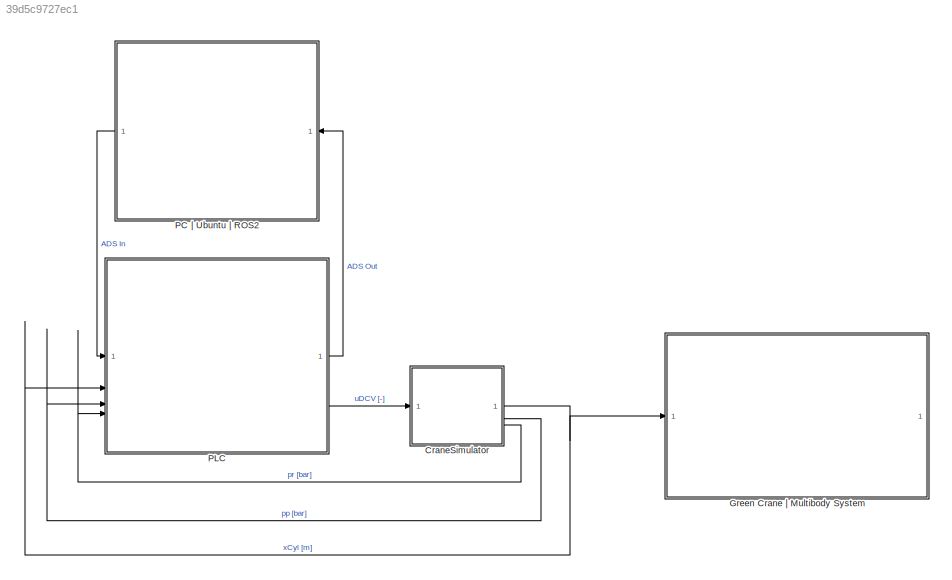
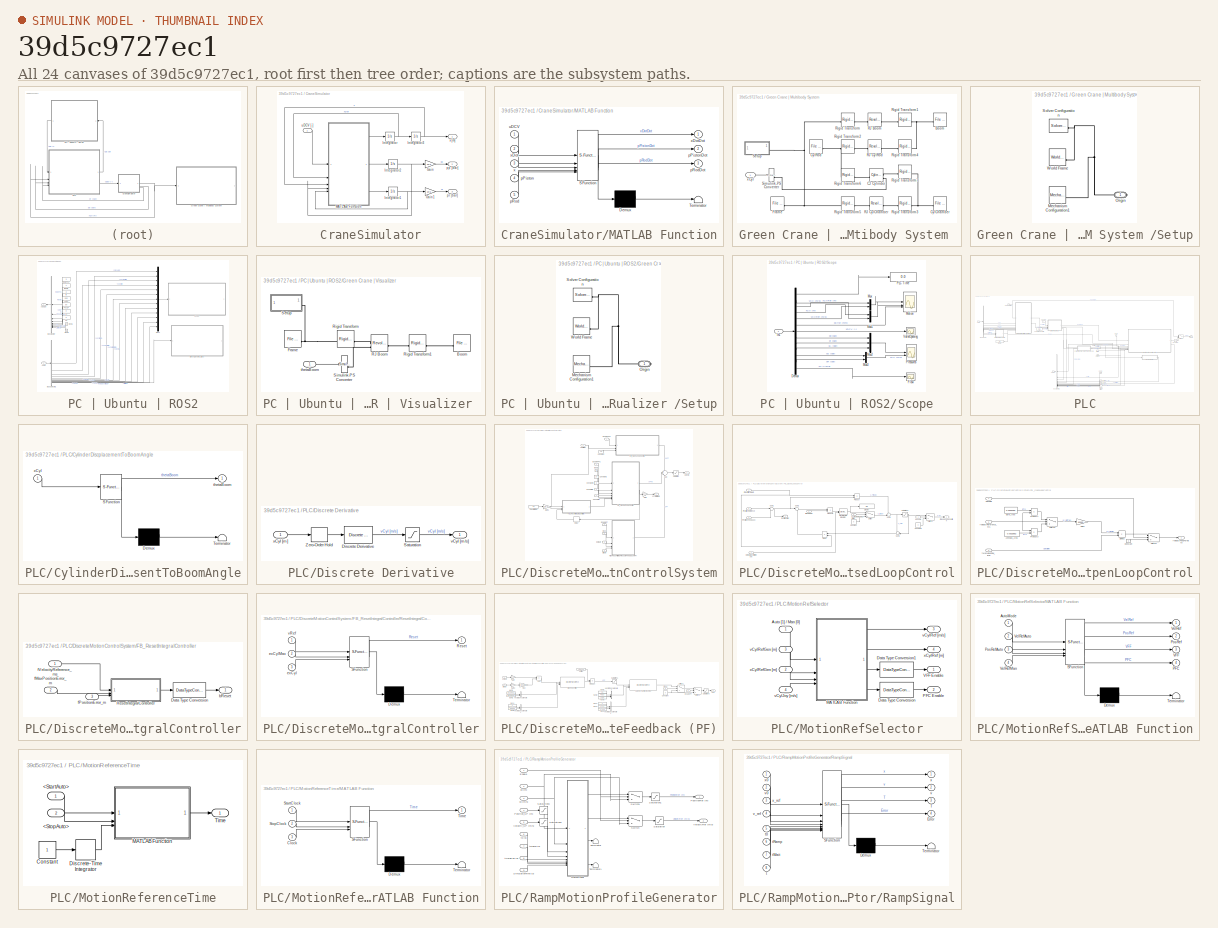
[diagram: thumbnail index - all 24 canvases of the model, root first then tree order]
MODEL slx_39d5c9727ec1
KIND model
CONFIG AbsTol = auto
CONFIG EnableMultiTasking = off
CONFIG FixedStep = 0.0001
CONFIG MaxStep = auto
CONFIG MinStep = auto
CONFIG RelTol = 1e-3
CONFIG SampleTimeConstraint = Unconstrained
CONFIG SolverName = ode23
CONFIG StartTime = 0.0
CONFIG StopTime = 25
BLOCK [SubSystem] CraneSimulator
BLOCK [Gain] CraneSimulator/Gain
  Gain = 1e-5
BLOCK [Gain] CraneSimulator/Gain1
  Gain = 1e-5
BLOCK [Integrator] CraneSimulator/Integrator
  LowerSaturationLimit = -0.12
  UpperSaturationLimit = 0.12
BLOCK [Integrator] CraneSimulator/Integrator1
  InitialCondition = 5.144e5
  LimitOutput = on
  LowerSaturationLimit = 1.1e5
  UpperSaturationLimit = 180e5
BLOCK [Integrator] CraneSimulator/Integrator2
  InitialCondition = 68.74e5
  LimitOutput = on
  LowerSaturationLimit = 1.1e5
  UpperSaturationLimit = 180e5
BLOCK [Integrator] CraneSimulator/Integrator3
  LimitOutput = on
  LowerSaturationLimit = 0
  UpperSaturationLimit = 0.5
BLOCK [SubSystem] CraneSimulator/MATLAB Function
  ErrorFcn = Stateflow.Translate.translate
  PermitHierarchicalResolution = ExplicitOnly
  SFBlockType = MATLAB Function
  TreatAsAtomicUnit = on
BLOCK [Demux] CraneSimulator/MATLAB Function/ Demux 
  Outputs = 1
BLOCK [S-Function] CraneSimulator/MATLAB Function/ SFunction 
  EnableBusSupport = off
  FunctionName = sf_sfun
  PortCounts = [5 4]
  SFcnIsStateOwnerBlock = off
  SFunctionDeploymentMode = off
  Tag = Stateflow S-Function 9
BLOCK [Terminator] CraneSimulator/MATLAB Function/ Terminator 
BLOCK [Inport] CraneSimulator/MATLAB Function/pPiston
  Port = 4
BLOCK [Outport] CraneSimulator/MATLAB Function/pPistonDot
  Port = 2
BLOCK [Inport] CraneSimulator/MATLAB Function/pRod
  Port = 5
BLOCK [Outport] CraneSimulator/MATLAB Function/pRodDot
  Port = 3
BLOCK [Inport] CraneSimulator/MATLAB Function/uDCV
BLOCK [Inport] CraneSimulator/MATLAB Function/x
  Port = 3
BLOCK [Inport] CraneSimulator/MATLAB Function/xDot
  Port = 2
BLOCK [Outport] CraneSimulator/MATLAB Function/xDotDot
BLOCK [Outport] CraneSimulator/pp [bar]
  Port = 2
BLOCK [Outport] CraneSimulator/pr [bar]
  Port = 3
BLOCK [Inport] CraneSimulator/uDCV [-]
BLOCK [Outport] CraneSimulator/x [m]
BLOCK [SubSystem] Green Crane | Multibody System 
BLOCK [Reference] Green Crane | Multibody System /Boom  REF=sm_lib/Body Elements/File Solid
  SourceBlock = sm_lib/Body Elements/File Solid
  SourceType = File Solid
BLOCK [Reference] Green Crane | Multibody System /CJ Cylinder  REF=sm_lib/Joints/Cylindrical
Joint
  NameLocation = top
  SourceBlock = sm_lib/Joints/Cylindrical\nJoint
  SourceType = Cylindrical\nJoint
BLOCK [Reference] Green Crane | Multibody System /CylChamber  REF=sm_lib/Body Elements/File Solid
  SourceBlock = sm_lib/Body Elements/File Solid
  SourceType = File Solid
BLOCK [Reference] Green Crane | Multibody System /CylRod  REF=sm_lib/Body Elements/File Solid
  NameLocation = top
  SourceBlock = sm_lib/Body Elements/File Solid
  SourceType = File Solid
BLOCK [Reference] Green Crane | Multibody System /Frame  REF=sm_lib/Body Elements/File Solid
  NameLocation = top
  SourceBlock = sm_lib/Body Elements/File Solid
  SourceType = File Solid
BLOCK [Reference] Green Crane | Multibody System /RJ Boom  REF=sm_lib/Joints/Revolute Joint
  SourceBlock = sm_lib/Joints/Revolute Joint
  SourceType = Revolute Joint
BLOCK [Reference] Green Crane | Multibody System /RJ CylChamber  REF=sm_lib/Joints/Revolute Joint
  SourceBlock = sm_lib/Joints/Revolute Joint
  SourceType = Revolute Joint
BLOCK [Reference] Green Crane | Multibody System /RJ CylRod  REF=sm_lib/Joints/Revolute Joint
  NameLocation = top
  SourceBlock = sm_lib/Joints/Revolute Joint
  SourceType = Revolute Joint
BLOCK [Reference] Green Crane | Multibody System /Rigid Transform  REF=sm_lib/Frames and
Transforms/Rigid
Transform
  SourceBlock = sm_lib/Frames and\nTransforms/Rigid\nTransform
  SourceType = Rigid\nTransform
BLOCK [Reference] Green Crane | Multibody System /Rigid Transform1  REF=sm_lib/Frames and
Transforms/Rigid
Transform
  NameLocation = top
  SourceBlock = sm_lib/Frames and\nTransforms/Rigid\nTransform
  SourceType = Rigid\nTransform
BLOCK [Reference] Green Crane | Multibody System /Rigid Transform2  REF=sm_lib/Frames and
Transforms/Rigid
Transform
  SourceBlock = sm_lib/Frames and\nTransforms/Rigid\nTransform
  SourceType = Rigid\nTransform
BLOCK [Reference] Green Crane | Multibody System /Rigid Transform3  REF=sm_lib/Frames and
Transforms/Rigid
Transform
  NameLocation = top
  SourceBlock = sm_lib/Frames and\nTransforms/Rigid\nTransform
  SourceType = Rigid\nTransform
BLOCK [Reference] Green Crane | Multibody System /Rigid Transform4  REF=sm_lib/Frames and
Transforms/Rigid
Transform
  NameLocation = top
  SourceBlock = sm_lib/Frames and\nTransforms/Rigid\nTransform
  SourceType = Rigid\nTransform
BLOCK [Reference] Green Crane | Multibody System /Rigid Transform5  REF=sm_lib/Frames and
Transforms/Rigid
Transform
  SourceBlock = sm_lib/Frames and\nTransforms/Rigid\nTransform
  SourceType = Rigid\nTransform
BLOCK [Reference] Green Crane | Multibody System /Rigid Transform6  REF=sm_lib/Frames and
Transforms/Rigid
Transform
  SourceBlock = sm_lib/Frames and\nTransforms/Rigid\nTransform
  SourceType = Rigid\nTransform
BLOCK [Reference] Green Crane | Multibody System /Rigid Transform7  REF=sm_lib/Frames and
Transforms/Rigid
Transform
  NameLocation = top
  SourceBlock = sm_lib/Frames and\nTransforms/Rigid\nTransform
  SourceType = Rigid\nTransform
BLOCK [SubSystem] Green Crane | Multibody System /Setup
BLOCK [Reference] Green Crane | Multibody System /Setup/Mechanism Configuration1  REF=sm_lib/Utilities/Mechanism
Configuration
  SourceBlock = sm_lib/Utilities/Mechanism\nConfiguration
  SourceType = Mechanism\nConfiguration
BLOCK [PMIOPort] Green Crane | Multibody System /Setup/Origin
  Side = Right
BLOCK [Reference] Green Crane | Multibody System /Setup/Solver Configuration  REF=nesl_utility/Solver
Configuration
  SourceBlock = nesl_utility/Solver\nConfiguration
  SourceType = Solver\nConfiguration
BLOCK [Reference] Green Crane | Multibody System /Setup/World Frame  REF=sm_lib/Frames and
Transforms/World Frame
  SourceBlock = sm_lib/Frames and\nTransforms/World Frame
  SourceType = World Frame
BLOCK [Reference] Green Crane | Multibody System /Simulink-PS Converter  REF=nesl_utility/Simulink-PS
Converter
  SourceBlock = nesl_utility/Simulink-PS\nConverter
  SourceType = Simulink-PS\nConverter
BLOCK [Inport] Green Crane | Multibody System /xCyl
BLOCK [SubSystem] PC | Ubuntu | ROS2
  NameLocation = top
BLOCK [Inport] PC | Ubuntu | ROS2/ADS In
  NameLocation = top
BLOCK [Outport] PC | Ubuntu | ROS2/ADS Out
  NameLocation = top
BLOCK [Constant] PC | Ubuntu | ROS2/Bool1
  NameLocation = top
  OutDataTypeStr = boolean
BLOCK [Constant] PC | Ubuntu | ROS2/Bool2
  NameLocation = top
  OutDataTypeStr = boolean
  Value = 0
BLOCK [BusCreator] PC | Ubuntu | ROS2/Bus Creator
  DisplayOption = bar
  InheritFromInputs = on
  Inputs = 9
  NameLocation = top
BLOCK [BusSelector] PC | Ubuntu | ROS2/Bus Selector1
  OutputSignals = Clock [s],xCyl [m],xCylRef [m],vCyl [m/s],vCylRef [m],xCylError [mm],xDCV [-],pp [bar],pr [bar],pA [bar],pS [bar],pR [bar],Qr [l/min],thetaBoom [rad]
BLOCK [SubSystem] PC | Ubuntu | ROS2/Green Crane | Visualizer 
BLOCK [Reference] PC | Ubuntu | ROS2/Green Crane | Visualizer /Boom  REF=sm_lib/Body Elements/File Solid
  SourceBlock = sm_lib/Body Elements/File Solid
  SourceType = File Solid
BLOCK [Reference] PC | Ubuntu | ROS2/Green Crane | Visualizer /Frame  REF=sm_lib/Body Elements/File Solid
  NameLocation = top
  SourceBlock = sm_lib/Body Elements/File Solid
  SourceType = File Solid
BLOCK [Reference] PC | Ubuntu | ROS2/Green Crane | Visualizer /RJ Boom  REF=sm_lib/Joints/Revolute Joint
  SourceBlock = sm_lib/Joints/Revolute Joint
  SourceType = Revolute Joint
BLOCK [Reference] PC | Ubuntu | ROS2/Green Crane | Visualizer /Rigid Transform  REF=sm_lib/Frames and
Transforms/Rigid
Transform
  SourceBlock = sm_lib/Frames and\nTransforms/Rigid\nTransform
  SourceType = Rigid\nTransform
BLOCK [Reference] PC | Ubuntu | ROS2/Green Crane | Visualizer /Rigid Transform1  REF=sm_lib/Frames and
Transforms/Rigid
Transform
  NameLocation = top
  SourceBlock = sm_lib/Frames and\nTransforms/Rigid\nTransform
  SourceType = Rigid\nTransform
BLOCK [SubSystem] PC | Ubuntu | ROS2/Green Crane | Visualizer /Setup
BLOCK [Reference] PC | Ubuntu | ROS2/Green Crane | Visualizer /Setup/Mechanism Configuration1  REF=sm_lib/Utilities/Mechanism
Configuration
  SourceBlock = sm_lib/Utilities/Mechanism\nConfiguration
  SourceType = Mechanism\nConfiguration
BLOCK [PMIOPort] PC | Ubuntu | ROS2/Green Crane | Visualizer /Setup/Origin
  Side = Right
BLOCK [Reference] PC | Ubuntu | ROS2/Green Crane | Visualizer /Setup/Solver Configuration  REF=nesl_utility/Solver
Configuration
  SourceBlock = nesl_utility/Solver\nConfiguration
  SourceType = Solver\nConfiguration
BLOCK [Reference] PC | Ubuntu | ROS2/Green Crane | Visualizer /Setup/World Frame  REF=sm_lib/Frames and
Transforms/World Frame
  SourceBlock = sm_lib/Frames and\nTransforms/World Frame
  SourceType = World Frame
BLOCK [Reference] PC | Ubuntu | ROS2/Green Crane | Visualizer /Simulink-PS Converter  REF=nesl_utility/Simulink-PS
Converter
  SourceBlock = nesl_utility/Simulink-PS\nConverter
  SourceType = Simulink-PS\nConverter
BLOCK [Inport] PC | Ubuntu | ROS2/Green Crane | Visualizer /thetaBoom
BLOCK [Mux] PC | Ubuntu | ROS2/Mux2
  DisplayOption = bar
  Inputs = 13
BLOCK [Constant] PC | Ubuntu | ROS2/PosSP
  NameLocation = top
  OutDataTypeStr = double
  Value = 0.4
BLOCK [SubSystem] PC | Ubuntu | ROS2/Scope
BLOCK [Demux] PC | Ubuntu | ROS2/Scope/Demux
  Outputs = 13
BLOCK [Scope] PC | Ubuntu | ROS2/Scope/Flow
  Floating = off
  NumInputPorts = 1
  ScopeSpecificationString = Simulink.scopes.TimeScopeBlockCfg('CurrentConfiguration', extmgr.ConfigurationSet(extmgr.Configuration('Core','General UI',true,'FigureColor',[0.831372549019608 0.815686274509804 0.784313725490196]),extmgr.Configuration('Core','Source UI',true),extmgr.Configuration('Sources','WiredSimulink',true,'DataLoggingVariableName','ScopeData3'),extmgr.Configuration('Visuals','Time Domain',true,'SerializedDi...<+1691ch>
BLOCK [Inport] PC | Ubuntu | ROS2/Scope/In1
BLOCK [Scope] PC | Ubuntu | ROS2/Scope/Motion
  Floating = off
  NumInputPorts = 3
  ScopeSpecificationString = Simulink.scopes.TimeScopeBlockCfg('CurrentConfiguration', extmgr.ConfigurationSet(extmgr.Configuration('Core','General UI',true,'FigureColor',[0.831372549019608 0.815686274509804 0.784313725490196]),extmgr.Configuration('Core','Source UI',true),extmgr.Configuration('Sources','WiredSimulink',true,'DataLoggingVariableName','ScopeData1'),extmgr.Configuration('Visuals','Time Domain',true,'SerializedDi...<+2951ch>
BLOCK [Mux] PC | Ubuntu | ROS2/Scope/Mux
  DisplayOption = bar
  Inputs = 2
BLOCK [Mux] PC | Ubuntu | ROS2/Scope/Mux1
  DisplayOption = bar
  Inputs = 2
BLOCK [Mux] PC | Ubuntu | ROS2/Scope/Mux2
  DisplayOption = bar
  Inputs = 3
BLOCK [Mux] PC | Ubuntu | ROS2/Scope/Mux3
  DisplayOption = bar
  Inputs = 2
BLOCK [Display] PC | Ubuntu | ROS2/Scope/PLC Time
  Decimation = 1
BLOCK [Scope] PC | Ubuntu | ROS2/Scope/Pressures
  Floating = off
  NumInputPorts = 2
  ScopeSpecificationString = Simulink.scopes.TimeScopeBlockCfg('CurrentConfiguration', extmgr.ConfigurationSet(extmgr.Configuration('Core','General UI',true,'FigureColor',[0.831372549019608 0.815686274509804 0.784313725490196]),extmgr.Configuration('Core','Source UI',true),extmgr.Configuration('Sources','WiredSimulink',true),extmgr.Configuration('Visuals','Time Domain',true,'SerializedDisplays',{struct('MinYLimReal','-22.5','...<+2123ch>
BLOCK [Scope] PC | Ubuntu | ROS2/Scope/ValveOpening
  Floating = off
  NumInputPorts = 1
  ScopeSpecificationString = Simulink.scopes.TimeScopeBlockCfg('CurrentConfiguration', extmgr.ConfigurationSet(extmgr.Configuration('Core','General UI',true,'FigureColor',[0.831372549019608 0.815686274509804 0.784313725490196]),extmgr.Configuration('Core','Source UI',true),extmgr.Configuration('Sources','WiredSimulink',true,'DataLoggingVariableName','ScopeData5'),extmgr.Configuration('Visuals','Time Domain',true,'SerializedDi...<+1683ch>
BLOCK [Constant] PC | Ubuntu | ROS2/VelSP
  NameLocation = top
  OutDataTypeStr = double
  Value = 0.05
BLOCK [Constant] PC | Ubuntu | ROS2/t0
  NameLocation = top
  OutDataTypeStr = double
  Value = 3
BLOCK [Constant] PC | Ubuntu | ROS2/tHoldPos
  NameLocation = top
  OutDataTypeStr = double
  Value = 3
BLOCK [Constant] PC | Ubuntu | ROS2/tRamp
  NameLocation = top
  OutDataTypeStr = double
BLOCK [Constant] PC | Ubuntu | ROS2/v0
  NameLocation = top
  OutDataTypeStr = double
  Value = 0
BLOCK [Constant] PC | Ubuntu | ROS2/x0
  NameLocation = top
  OutDataTypeStr = double
  Value = 0
BLOCK [SubSystem] PLC
BLOCK [Inport] PLC/ADS In
BLOCK [Outport] PLC/ADS Out
  NameLocation = top
BLOCK [Constant] PLC/Bool5
  OutDataTypeStr = boolean
  Value = 0
BLOCK [BusCreator] PLC/Bus Creator1
  DisplayOption = bar
  InheritFromInputs = on
  Inputs = 14
  NameLocation = top
BLOCK [BusSelector] PLC/Bus Selector
  OutputSignals = x0,v0,PosSP,VelSP,t0,tRamp,tHoldPos,StartAuto,StopAuto
BLOCK [Constant] PLC/Constant1
  Value = 0
BLOCK [Constant] PLC/Constant2
  OutDataTypeStr = boolean
BLOCK [SubSystem] PLC/CylinderDiscplacementToBoomAngle
  ErrorFcn = Stateflow.Translate.translate
  NameLocation = top
  PermitHierarchicalResolution = ExplicitOnly
  SFBlockType = MATLAB Function
  TreatAsAtomicUnit = on
BLOCK [Demux] PLC/CylinderDiscplacementToBoomAngle/ Demux 
  Outputs = 1
BLOCK [S-Function] PLC/CylinderDiscplacementToBoomAngle/ SFunction 
  EnableBusSupport = off
  FunctionName = sf_sfun
  PortCounts = [1 2]
  SFcnIsStateOwnerBlock = off
  SFunctionDeploymentMode = off
  Tag = Stateflow S-Function 5
BLOCK [Terminator] PLC/CylinderDiscplacementToBoomAngle/ Terminator 
BLOCK [Outport] PLC/CylinderDiscplacementToBoomAngle/thetaBoom
BLOCK [Inport] PLC/CylinderDiscplacementToBoomAngle/xCyl
BLOCK [SubSystem] PLC/Discrete Derivative
BLOCK [Reference] PLC/Discrete Derivative/Discrete Derivative  REF=simulink/Discrete/Discrete Derivative
  SourceBlock = simulink/Discrete/Discrete Derivative
  SourceType = Discrete Derivative
BLOCK [Saturate] PLC/Discrete Derivative/Saturation
BLOCK [ZeroOrderHold] PLC/Discrete Derivative/Zero-Order Hold
  SampleTime = -1
BLOCK [Outport] PLC/Discrete Derivative/vCyl [m//s]
  NameLocation = top
BLOCK [Inport] PLC/Discrete Derivative/xCyl [m]
BLOCK [SubSystem] PLC/DiscreteMotionControlSystem
BLOCK [Sum] PLC/DiscreteMotionControlSystem/Add
  Inputs = ++-
BLOCK [Constant] PLC/DiscreteMotionControlSystem/Bool2
  OutDataTypeStr = boolean
  Value = 0
BLOCK [Inport] PLC/DiscreteMotionControlSystem/Clock
  Port = 6
BLOCK [Constant] PLC/DiscreteMotionControlSystem/Constant
  Value = 19
BLOCK [Constant] PLC/DiscreteMotionControlSystem/Constant2
  Value = 10
BLOCK [Constant] PLC/DiscreteMotionControlSystem/Constant3
  Value = 5
BLOCK [Delay] PLC/DiscreteMotionControlSystem/Delay
  InputPortMap = u0
BLOCK [Inport] PLC/DiscreteMotionControlSystem/Enable PFC
  Port = 2
BLOCK [Inport] PLC/DiscreteMotionControlSystem/EnablePf
  Port = 3
BLOCK [Inport] PLC/DiscreteMotionControlSystem/EnableVFF
BLOCK [SubSystem] PLC/DiscreteMotionControlSystem/FB_ClosedLoopControl
  TreatAsAtomicUnit = on
BLOCK [Constant] PLC/DiscreteMotionControlSystem/FB_ClosedLoopControl/Constant
  Value = 0
BLOCK [Constant] PLC/DiscreteMotionControlSystem/FB_ClosedLoopControl/Constant1
  Value = 0
BLOCK [DiscreteIntegrator] PLC/DiscreteMotionControlSystem/FB_ClosedLoopControl/Discrete-Time Integrator
  ExternalReset = sampled level
  ICPrevOutput = DiscIntNeverNeededParam
  ICPrevScaledInput = DiscIntNeverNeededParam
  InitialConditionSetting = Auto
  LimitOutput = on
  LowerSaturationLimit = -1
  SampleTime = -1
  UpperSaturationLimit = 1
BLOCK [Display] PLC/DiscreteMotionControlSystem/FB_ClosedLoopControl/Display
  Decimation = 1
BLOCK [Product] PLC/DiscreteMotionControlSystem/FB_ClosedLoopControl/Divide
  Inputs = */
  NameLocation = top
BLOCK [Product] PLC/DiscreteMotionControlSystem/FB_ClosedLoopControl/Product
BLOCK [Product] PLC/DiscreteMotionControlSystem/FB_ClosedLoopControl/Product2
BLOCK [Saturate] PLC/DiscreteMotionControlSystem/FB_ClosedLoopControl/Saturation1
  LowerLimit = -1
  UpperLimit = 1
BLOCK [Sum] PLC/DiscreteMotionControlSystem/FB_ClosedLoopControl/Sum1
  Inputs = |+-
BLOCK [Sum] PLC/DiscreteMotionControlSystem/FB_ClosedLoopControl/Sum2
  Inputs = |++
BLOCK [Sum] PLC/DiscreteMotionControlSystem/FB_ClosedLoopControl/Sum3
  Inputs = -+|
  NameLocation = top
BLOCK [Sum] PLC/DiscreteMotionControlSystem/FB_ClosedLoopControl/Sum5
  Inputs = ++|
BLOCK [Switch] PLC/DiscreteMotionControlSystem/FB_ClosedLoopControl/Switch
  Criteria = u2 > Threshold
  InputSameDT = off
  SaturateOnIntegerOverflow = off
BLOCK [Switch] PLC/DiscreteMotionControlSystem/FB_ClosedLoopControl/Switch1
  Criteria = u2 > Threshold
  InputSameDT = off
  SaturateOnIntegerOverflow = off
BLOCK [Inport] PLC/DiscreteMotionControlSystem/FB_ClosedLoopControl/bActivateIntegralController
  OutDataTypeStr = boolean
  Port = 2
BLOCK [Inport] PLC/DiscreteMotionControlSystem/FB_ClosedLoopControl/bEnable
  OutDataTypeStr = boolean
BLOCK [Inport] PLC/DiscreteMotionControlSystem/FB_ClosedLoopControl/bIntegralControllReset
  OutDataTypeStr = boolean
  Port = 7
BLOCK [Outport] PLC/DiscreteMotionControlSystem/FB_ClosedLoopControl/fClosedLoopPosition
  NameLocation = top
  VectorParamsAs1DForOutWhenUnconnected = off
BLOCK [Inport] PLC/DiscreteMotionControlSystem/FB_ClosedLoopControl/fIntegralGain
  Port = 4
BLOCK [Outport] PLC/DiscreteMotionControlSystem/FB_ClosedLoopControl/fPositionError
  Port = 2
  VectorParamsAs1DForOutWhenUnconnected = off
BLOCK [Inport] PLC/DiscreteMotionControlSystem/FB_ClosedLoopControl/fPositionFeedback
  Port = 6
BLOCK [Inport] PLC/DiscreteMotionControlSystem/FB_ClosedLoopControl/fPositionReference
  Port = 5
BLOCK [Inport] PLC/DiscreteMotionControlSystem/FB_ClosedLoopControl/fProportionalGain
  Port = 3
BLOCK [SubSystem] PLC/DiscreteMotionControlSystem/FB_OpenLoopControl
  TreatAsAtomicUnit = on
BLOCK [Constant] PLC/DiscreteMotionControlSystem/FB_OpenLoopControl/Annnulus_Area
  Value = 0.0023562
BLOCK [Constant] PLC/DiscreteMotionControlSystem/FB_OpenLoopControl/Bore_Area
  Value = 0.0033183
BLOCK [Constant] PLC/DiscreteMotionControlSystem/FB_OpenLoopControl/Constant
  Value = 0
BLOCK [Product] PLC/DiscreteMotionControlSystem/FB_OpenLoopControl/Divide2
  Inputs = */
BLOCK [Gain] PLC/DiscreteMotionControlSystem/FB_OpenLoopControl/Gain1
  Gain = 60000
BLOCK [Product] PLC/DiscreteMotionControlSystem/FB_OpenLoopControl/Product1
BLOCK [Product] PLC/DiscreteMotionControlSystem/FB_OpenLoopControl/Product3
BLOCK [Switch] PLC/DiscreteMotionControlSystem/FB_OpenLoopControl/Switch1
  Criteria = u2 > Threshold
  InputSameDT = off
  SaturateOnIntegerOverflow = off
BLOCK [Switch] PLC/DiscreteMotionControlSystem/FB_OpenLoopControl/Switch2
  InputSameDT = off
  SaturateOnIntegerOverflow = off
BLOCK [Inport] PLC/DiscreteMotionControlSystem/FB_OpenLoopControl/bEnable
  OutDataTypeStr = boolean
BLOCK [Inport] PLC/DiscreteMotionControlSystem/FB_OpenLoopControl/fMaxValveFlow_lmin
  Port = 3
BLOCK [Outport] PLC/DiscreteMotionControlSystem/FB_OpenLoopControl/fVelocityFeedForward
  VectorParamsAs1DForOutWhenUnconnected = off
BLOCK [Inport] PLC/DiscreteMotionControlSystem/FB_OpenLoopControl/fVelocityReference_ms
  Port = 2
BLOCK [SubSystem] PLC/DiscreteMotionControlSystem/FB_ResetIntegralController
  TreatAsAtomicUnit = on
BLOCK [DataTypeConversion] PLC/DiscreteMotionControlSystem/FB_ResetIntegralController/Data Type Conversion
  OutDataTypeStr = boolean
  RndMeth = Floor
  SaturateOnIntegerOverflow = off
BLOCK [SubSystem] PLC/DiscreteMotionControlSystem/FB_ResetIntegralController/ResetIntegralController
  ErrorFcn = Stateflow.Translate.translate
  PermitHierarchicalResolution = ExplicitOnly
  SFBlockType = MATLAB Function
  TreatAsAtomicUnit = on
BLOCK [Demux] PLC/DiscreteMotionControlSystem/FB_ResetIntegralController/ResetIntegralController/ Demux 
  Outputs = 1
BLOCK [S-Function] PLC/DiscreteMotionControlSystem/FB_ResetIntegralController/ResetIntegralController/ SFunction 
  EnableBusSupport = off
  FunctionName = sf_sfun
  PortCounts = [3 2]
  SFcnIsStateOwnerBlock = off
  SFunctionDeploymentMode = off
  Tag = Stateflow S-Function 2
BLOCK [Terminator] PLC/DiscreteMotionControlSystem/FB_ResetIntegralController/ResetIntegralController/ Terminator 
BLOCK [Outport] PLC/DiscreteMotionControlSystem/FB_ResetIntegralController/ResetIntegralController/Reset
BLOCK [Inport] PLC/DiscreteMotionControlSystem/FB_ResetIntegralController/ResetIntegralController/exCyl
  Port = 3
BLOCK [Inport] PLC/DiscreteMotionControlSystem/FB_ResetIntegralController/ResetIntegralController/exCylMax
  Port = 2
BLOCK [Inport] PLC/DiscreteMotionControlSystem/FB_ResetIntegralController/ResetIntegralController/vRef
BLOCK [Outport] PLC/DiscreteMotionControlSystem/FB_ResetIntegralController/bReset
  OutDataTypeStr = boolean
BLOCK [Inport] PLC/DiscreteMotionControlSystem/FB_ResetIntegralController/fMaxPositionError_m
  Port = 2
BLOCK [Inport] PLC/DiscreteMotionControlSystem/FB_ResetIntegralController/fPositionError_m
  Port = 3
BLOCK [Inport] PLC/DiscreteMotionControlSystem/FB_ResetIntegralController/fVelocityReference_ms
BLOCK [Gain] PLC/DiscreteMotionControlSystem/Gain
  Gain = 1e3
BLOCK [Gain] PLC/DiscreteMotionControlSystem/Gain1
  Gain = 1e-3
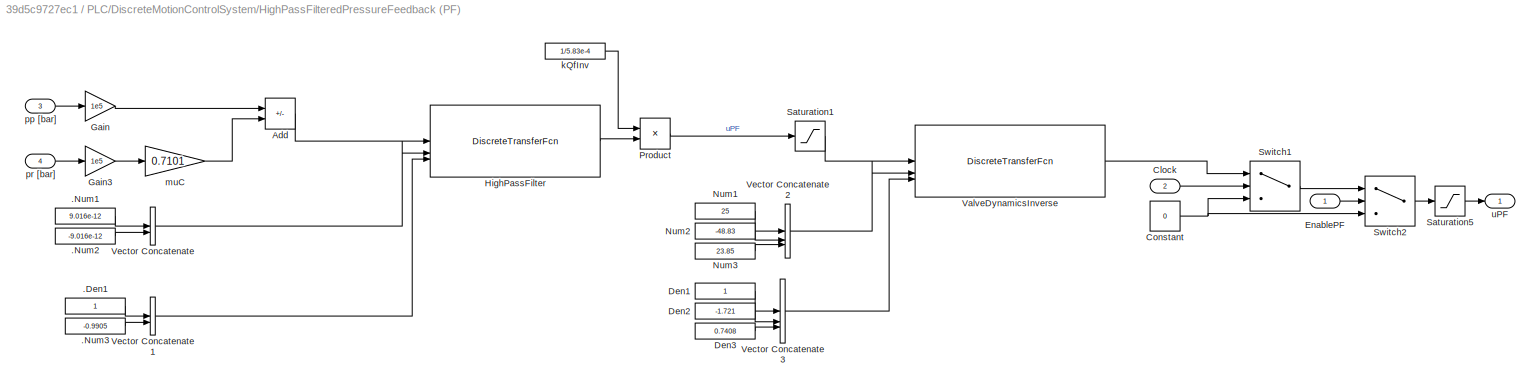
BLOCK [SubSystem] PLC/DiscreteMotionControlSystem/HighPassFilteredPressureFeedback (PF)
  SystemSampleTime = tCycle
  TreatAsAtomicUnit = on
BLOCK [Constant] PLC/DiscreteMotionControlSystem/HighPassFilteredPressureFeedback (PF)/.Den1
BLOCK [Constant] PLC/DiscreteMotionControlSystem/HighPassFilteredPressureFeedback (PF)/.Num1
  Value = 9.016e-12
BLOCK [Constant] PLC/DiscreteMotionControlSystem/HighPassFilteredPressureFeedback (PF)/.Num2
  Value = -9.016e-12
BLOCK [Constant] PLC/DiscreteMotionControlSystem/HighPassFilteredPressureFeedback (PF)/.Num3
  Value = -0.9905
BLOCK [Sum] PLC/DiscreteMotionControlSystem/HighPassFilteredPressureFeedback (PF)/Add
  IconShape = rectangular
  Inputs = +-
BLOCK [Inport] PLC/DiscreteMotionControlSystem/HighPassFilteredPressureFeedback (PF)/Clock
  NameLocation = top
  Port = 2
BLOCK [Constant] PLC/DiscreteMotionControlSystem/HighPassFilteredPressureFeedback (PF)/Constant
  Value = 0
BLOCK [Constant] PLC/DiscreteMotionControlSystem/HighPassFilteredPressureFeedback (PF)/Den1
BLOCK [Constant] PLC/DiscreteMotionControlSystem/HighPassFilteredPressureFeedback (PF)/Den2
  Value = -1.721
BLOCK [Constant] PLC/DiscreteMotionControlSystem/HighPassFilteredPressureFeedback (PF)/Den3
  Value = 0.7408
BLOCK [Inport] PLC/DiscreteMotionControlSystem/HighPassFilteredPressureFeedback (PF)/EnablePF
  NameLocation = top
  OutDataTypeStr = boolean
BLOCK [Gain] PLC/DiscreteMotionControlSystem/HighPassFilteredPressureFeedback (PF)/Gain
  Gain = 1e5
BLOCK [Gain] PLC/DiscreteMotionControlSystem/HighPassFilteredPressureFeedback (PF)/Gain3
  Gain = 1e5
BLOCK [DiscreteTransferFcn] PLC/DiscreteMotionControlSystem/HighPassFilteredPressureFeedback (PF)/HighPassFilter
  Denominator = [1 -0.9954]
  DenominatorSource = Input port
  InputPortMap = u0,p1,p3
  Numerator = [3.786e-11 -3.786e-11]
  NumeratorSource = Input port
  a0EqualsOne = on
BLOCK [Constant] PLC/DiscreteMotionControlSystem/HighPassFilteredPressureFeedback (PF)/Num1
  Value = 25
BLOCK [Constant] PLC/DiscreteMotionControlSystem/HighPassFilteredPressureFeedback (PF)/Num2
  Value = -48.83
BLOCK [Constant] PLC/DiscreteMotionControlSystem/HighPassFilteredPressureFeedback (PF)/Num3
  Value = 23.85
BLOCK [Product] PLC/DiscreteMotionControlSystem/HighPassFilteredPressureFeedback (PF)/Product
BLOCK [Saturate] PLC/DiscreteMotionControlSystem/HighPassFilteredPressureFeedback (PF)/Saturation1
  LowerLimit = -1
  UpperLimit = 1
BLOCK [Saturate] PLC/DiscreteMotionControlSystem/HighPassFilteredPressureFeedback (PF)/Saturation5
  LowerLimit = -1
  UpperLimit = 1
BLOCK [Switch] PLC/DiscreteMotionControlSystem/HighPassFilteredPressureFeedback (PF)/Switch1
  Criteria = u2 > Threshold
  InputSameDT = off
  SaturateOnIntegerOverflow = off
  Threshold = 2
BLOCK [Switch] PLC/DiscreteMotionControlSystem/HighPassFilteredPressureFeedback (PF)/Switch2
  Criteria = u2 > Threshold
  InputSameDT = off
  SaturateOnIntegerOverflow = off
BLOCK [DiscreteTransferFcn] PLC/DiscreteMotionControlSystem/HighPassFilteredPressureFeedback (PF)/ValveDynamicsInverse
  Denominator = [1 -1.721 0.7408]
  DenominatorSource = Input port
  InputPortMap = u0,p1,p3
  Numerator = [25 -48.83 23.85]
  NumeratorSource = Input port
  a0EqualsOne = on
BLOCK [Concatenate] PLC/DiscreteMotionControlSystem/HighPassFilteredPressureFeedback (PF)/Vector Concatenate
BLOCK [Concatenate] PLC/DiscreteMotionControlSystem/HighPassFilteredPressureFeedback (PF)/Vector Concatenate1
BLOCK [Concatenate] PLC/DiscreteMotionControlSystem/HighPassFilteredPressureFeedback (PF)/Vector Concatenate2
  NumInputs = 3
BLOCK [Concatenate] PLC/DiscreteMotionControlSystem/HighPassFilteredPressureFeedback (PF)/Vector Concatenate3
  NumInputs = 3
BLOCK [Constant] PLC/DiscreteMotionControlSystem/HighPassFilteredPressureFeedback (PF)/kQfInv
  Value = 1/5.83e-4
BLOCK [Gain] PLC/DiscreteMotionControlSystem/HighPassFilteredPressureFeedback (PF)/muC
  Gain = 0.7101
BLOCK [Inport] PLC/DiscreteMotionControlSystem/HighPassFilteredPressureFeedback (PF)/pp [bar]
  NameLocation = top
  Port = 3
BLOCK [Inport] PLC/DiscreteMotionControlSystem/HighPassFilteredPressureFeedback (PF)/pr [bar]
  NameLocation = top
  Port = 4
BLOCK [Outport] PLC/DiscreteMotionControlSystem/HighPassFilteredPressureFeedback (PF)/uPF
  VectorParamsAs1DForOutWhenUnconnected = off
BLOCK [Inport] PLC/DiscreteMotionControlSystem/PosFb [m]
  Port = 7
BLOCK [Inport] PLC/DiscreteMotionControlSystem/PosRef [m]
  Port = 5
BLOCK [Saturate] PLC/DiscreteMotionControlSystem/Saturation
  LowerLimit = -1
  UpperLimit = 1
BLOCK [Constant] PLC/DiscreteMotionControlSystem/maxError [mm]
  Value = 0.5
BLOCK [Inport] PLC/DiscreteMotionControlSystem/pp [bar]
  Port = 8
BLOCK [Inport] PLC/DiscreteMotionControlSystem/pr [bar]
  Port = 9
BLOCK [Outport] PLC/DiscreteMotionControlSystem/uDCV [-]
BLOCK [Inport] PLC/DiscreteMotionControlSystem/vRef [m//s]
  Port = 4
BLOCK [Outport] PLC/DiscreteMotionControlSystem/xCylError [mm]
  Port = 2
BLOCK [Display] PLC/Display
  Decimation = 1
  NameLocation = top
BLOCK [Constant] PLC/EnabeMotion
  OutDataTypeStr = boolean
BLOCK [SubSystem] PLC/MotionRefSelector
BLOCK [Inport] PLC/MotionRefSelector/Auto [1] // Man [0]
  OutDataTypeStr = boolean
BLOCK [DataTypeConversion] PLC/MotionRefSelector/Data Type Conversion
  OutDataTypeStr = boolean
  RndMeth = Floor
  SaturateOnIntegerOverflow = off
BLOCK [DataTypeConversion] PLC/MotionRefSelector/Data Type Conversion1
  OutDataTypeStr = boolean
  RndMeth = Floor
  SaturateOnIntegerOverflow = off
BLOCK [SubSystem] PLC/MotionRefSelector/MATLAB Function
  ErrorFcn = Stateflow.Translate.translate
  PermitHierarchicalResolution = ExplicitOnly
  SFBlockType = MATLAB Function
  TreatAsAtomicUnit = on
BLOCK [Demux] PLC/MotionRefSelector/MATLAB Function/ Demux 
  Outputs = 1
BLOCK [S-Function] PLC/MotionRefSelector/MATLAB Function/ SFunction 
  EnableBusSupport = off
  FunctionName = sf_sfun
  PortCounts = [4 5]
  SFcnIsStateOwnerBlock = off
  SFunctionDeploymentMode = off
  Tag = Stateflow S-Function 6
BLOCK [Terminator] PLC/MotionRefSelector/MATLAB Function/ Terminator 
BLOCK [Inport] PLC/MotionRefSelector/MATLAB Function/AutoMode
BLOCK [Outport] PLC/MotionRefSelector/MATLAB Function/PFC
  Port = 4
BLOCK [Outport] PLC/MotionRefSelector/MATLAB Function/PosRef
  Port = 2
BLOCK [Inport] PLC/MotionRefSelector/MATLAB Function/PosRefAuto
  Port = 3
BLOCK [Outport] PLC/MotionRefSelector/MATLAB Function/VFF
  Port = 3
BLOCK [Outport] PLC/MotionRefSelector/MATLAB Function/VelRef
BLOCK [Inport] PLC/MotionRefSelector/MATLAB Function/VelRefAuto
  Port = 2
BLOCK [Inport] PLC/MotionRefSelector/MATLAB Function/VelRefMan
  Port = 4
BLOCK [Outport] PLC/MotionRefSelector/PFC Enable
  OutDataTypeStr = boolean
  Port = 2
BLOCK [Outport] PLC/MotionRefSelector/VFF Enable
  OutDataTypeStr = boolean
BLOCK [Inport] PLC/MotionRefSelector/vCylJoy [m//s]
  Port = 4
BLOCK [Outport] PLC/MotionRefSelector/vCylRef [m//s]
  Port = 3
BLOCK [Inport] PLC/MotionRefSelector/vCylRefGen [m]
  Port = 3
BLOCK [Outport] PLC/MotionRefSelector/xCylRef [m]
  Port = 4
BLOCK [Inport] PLC/MotionRefSelector/xCylRefGen [m]
  Port = 2
BLOCK [SubSystem] PLC/MotionReferenceTime
BLOCK [Inport] PLC/MotionReferenceTime/<StartAuto>
BLOCK [Inport] PLC/MotionReferenceTime/<StopAuto>
  Port = 2
BLOCK [Constant] PLC/MotionReferenceTime/Constant
BLOCK [DiscreteIntegrator] PLC/MotionReferenceTime/Discrete-Time Integrator
  ICPrevOutput = DiscIntNeverNeededParam
  ICPrevScaledInput = DiscIntNeverNeededParam
  InitialConditionSetting = Auto
  SampleTime = -1
BLOCK [SubSystem] PLC/MotionReferenceTime/MATLAB Function
  ErrorFcn = Stateflow.Translate.translate
  PermitHierarchicalResolution = ExplicitOnly
  SFBlockType = MATLAB Function
  TreatAsAtomicUnit = on
BLOCK [Demux] PLC/MotionReferenceTime/MATLAB Function/ Demux 
  Outputs = 1
BLOCK [S-Function] PLC/MotionReferenceTime/MATLAB Function/ SFunction 
  EnableBusSupport = off
  FunctionName = sf_sfun
  PortCounts = [3 2]
  SFcnIsStateOwnerBlock = off
  SFunctionDeploymentMode = off
  Tag = Stateflow S-Function 4
BLOCK [Terminator] PLC/MotionReferenceTime/MATLAB Function/ Terminator 
BLOCK [Inport] PLC/MotionReferenceTime/MATLAB Function/Clock
  Port = 3
BLOCK [Inport] PLC/MotionReferenceTime/MATLAB Function/StartClock
BLOCK [Inport] PLC/MotionReferenceTime/MATLAB Function/StopClock
  Port = 2
BLOCK [Outport] PLC/MotionReferenceTime/MATLAB Function/Time
BLOCK [Outport] PLC/MotionReferenceTime/Time
BLOCK [Inport] PLC/Qr [l//min]
  NameLocation = top
  Port = 8
BLOCK [SubSystem] PLC/RampMotionProfileGenerator
  TreatAsAtomicUnit = on
  VariantControl = Ramp_Profile
BLOCK [Inport] PLC/RampMotionProfileGenerator/Enable
  OutDataTypeStr = boolean
BLOCK [Outport] PLC/RampMotionProfileGenerator/PositionRef [m] 
  VectorParamsAs1DForOutWhenUnconnected = off
BLOCK [Inport] PLC/RampMotionProfileGenerator/Position_SP [m]
  OutDataTypeStr = double
  Port = 4
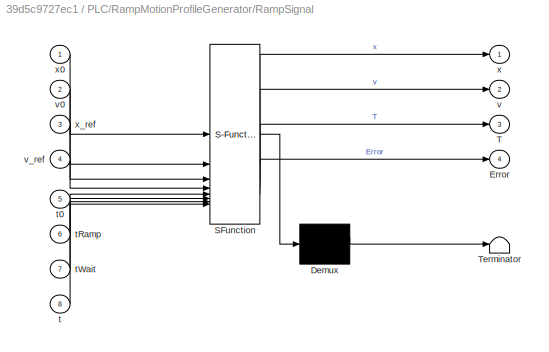
BLOCK [SubSystem] PLC/RampMotionProfileGenerator/RampSignal
  ErrorFcn = Stateflow.Translate.translate
  PermitHierarchicalResolution = ExplicitOnly
  SFBlockType = MATLAB Function
  TreatAsAtomicUnit = on
BLOCK [Demux] PLC/RampMotionProfileGenerator/RampSignal/ Demux 
  Outputs = 1
BLOCK [S-Function] PLC/RampMotionProfileGenerator/RampSignal/ SFunction 
  EnableBusSupport = off
  FunctionName = sf_sfun
  PortCounts = [8 5]
  SFcnIsStateOwnerBlock = off
  SFunctionDeploymentMode = off
  Tag = Stateflow S-Function 16
BLOCK [Terminator] PLC/RampMotionProfileGenerator/RampSignal/ Terminator 
BLOCK [Outport] PLC/RampMotionProfileGenerator/RampSignal/Error
  Port = 4
  VectorParamsAs1DForOutWhenUnconnected = off
BLOCK [Outport] PLC/RampMotionProfileGenerator/RampSignal/T
  Port = 3
  VectorParamsAs1DForOutWhenUnconnected = off
BLOCK [Inport] PLC/RampMotionProfileGenerator/RampSignal/t
  Port = 8
BLOCK [Inport] PLC/RampMotionProfileGenerator/RampSignal/t0
  Port = 5
BLOCK [Inport] PLC/RampMotionProfileGenerator/RampSignal/tRamp
  Port = 6
BLOCK [Inport] PLC/RampMotionProfileGenerator/RampSignal/tWait
  Port = 7
BLOCK [Outport] PLC/RampMotionProfileGenerator/RampSignal/v
  Port = 2
  VectorParamsAs1DForOutWhenUnconnected = off
BLOCK [Inport] PLC/RampMotionProfileGenerator/RampSignal/v0
  Port = 2
BLOCK [Inport] PLC/RampMotionProfileGenerator/RampSignal/v_ref
  Port = 4
BLOCK [Outport] PLC/RampMotionProfileGenerator/RampSignal/x
  VectorParamsAs1DForOutWhenUnconnected = off
BLOCK [Inport] PLC/RampMotionProfileGenerator/RampSignal/x0
BLOCK [Inport] PLC/RampMotionProfileGenerator/RampSignal/x_ref
  Port = 3
BLOCK [Saturate] PLC/RampMotionProfileGenerator/Saturation
  LowerLimit = -150
  UpperLimit = 150
BLOCK [Saturate] PLC/RampMotionProfileGenerator/Saturation1
  LowerLimit = 0
  UpperLimit = 500
BLOCK [Saturate] PLC/RampMotionProfileGenerator/Saturation2
  LowerLimit = 0
  UpperLimit = 0.120
BLOCK [Saturate] PLC/RampMotionProfileGenerator/Saturation3
  LowerLimit = 0
BLOCK [Inport] PLC/RampMotionProfileGenerator/SimulationTime [s]
  OutDataTypeStr = double
  Port = 9
BLOCK [Switch] PLC/RampMotionProfileGenerator/Switch
  Criteria = u2 > Threshold
  InputSameDT = off
  SaturateOnIntegerOverflow = off
BLOCK [Switch] PLC/RampMotionProfileGenerator/Switch1
  Criteria = u2 > Threshold
  InputSameDT = off
  SaturateOnIntegerOverflow = off
BLOCK [Terminator] PLC/RampMotionProfileGenerator/Terminator
BLOCK [Terminator] PLC/RampMotionProfileGenerator/Terminator1
BLOCK [Outport] PLC/RampMotionProfileGenerator/VelocityRef [m//s]
  Port = 2
  VectorParamsAs1DForOutWhenUnconnected = off
BLOCK [Inport] PLC/RampMotionProfileGenerator/Velocity_SP [m//s] 
  OutDataTypeStr = double
  Port = 5
BLOCK [Inport] PLC/RampMotionProfileGenerator/t0 [s]
  OutDataTypeStr = double
  Port = 6
BLOCK [Inport] PLC/RampMotionProfileGenerator/tHoldPos [s]
  OutDataTypeStr = double
  Port = 8
BLOCK [Inport] PLC/RampMotionProfileGenerator/tRamp [s]
  OutDataTypeStr = double
  Port = 7
BLOCK [Inport] PLC/RampMotionProfileGenerator/v0 [m//s]
  OutDataTypeStr = double
  Port = 3
BLOCK [Inport] PLC/RampMotionProfileGenerator/x0 [m]
  OutDataTypeStr = double
  Port = 2
BLOCK [Switch] PLC/Switch1
  Criteria = u2 > Threshold
  InputSameDT = off
  SaturateOnIntegerOverflow = off
BLOCK [Inport] PLC/pA [bar]
  NameLocation = top
  Port = 5
BLOCK [Inport] PLC/pR [bar]
  NameLocation = top
  Port = 7
BLOCK [Inport] PLC/pS [bar]
  NameLocation = top
  Port = 6
BLOCK [Inport] PLC/pp [bar]
  Port = 3
BLOCK [Inport] PLC/pr [bar]
  Port = 4
BLOCK [Outport] PLC/uDCV [-]
  Port = 2
BLOCK [Constant] PLC/vCylRef [-0.12...0.12]m//s
  OutDataTypeStr = double
  Value = 0.05
BLOCK [Inport] PLC/xCyl [m]
  Port = 2
BLOCK [Inport] PLC/xDCV [-]
  NameLocation = top
  Port = 9
LINE CraneSimulator/Gain1:1 -> CraneSimulator/pr [bar]:1
LINE CraneSimulator/Gain:1 -> CraneSimulator/pp [bar]:1
NET CraneSimulator/Integrator1:1 -> CraneSimulator/Gain1:1, CraneSimulator/MATLAB Function:5
NET CraneSimulator/Integrator2:1 -> CraneSimulator/Gain:1, CraneSimulator/MATLAB Function:4
NET CraneSimulator/Integrator3:1 -> CraneSimulator/MATLAB Function:3, CraneSimulator/x [m]:1
NET CraneSimulator/Integrator:1 -> CraneSimulator/Integrator3:1, CraneSimulator/MATLAB Function:2
LINE CraneSimulator/MATLAB Function:1 -> CraneSimulator/Integrator:1
LINE CraneSimulator/MATLAB Function:2 -> CraneSimulator/Integrator2:1
LINE CraneSimulator/MATLAB Function:3 -> CraneSimulator/Integrator1:1
LINE CraneSimulator/uDCV [-]:1 -> CraneSimulator/MATLAB Function:1
NET CraneSimulator:1 -> Green Crane | Multibody System :1, PLC:2
LINE CraneSimulator:2 -> PLC:3
LINE CraneSimulator:3 -> PLC:4
LINE Green Crane | Multibody System /xCyl:1 -> Green Crane | Multibody System /Simulink-PS Converter:1
LINE PC | Ubuntu | ROS2/ADS In:1 -> PC | Ubuntu | ROS2/Bus Selector1:1
LINE PC | Ubuntu | ROS2/Bool1:1 -> PC | Ubuntu | ROS2/Bus Creator:8
LINE PC | Ubuntu | ROS2/Bool2:1 -> PC | Ubuntu | ROS2/Bus Creator:9
LINE PC | Ubuntu | ROS2/Bus Creator:1 -> PC | Ubuntu | ROS2/ADS Out:1
LINE PC | Ubuntu | ROS2/Bus Selector1:1 -> PC | Ubuntu | ROS2/Mux2:1
LINE PC | Ubuntu | ROS2/Bus Selector1:10 -> PC | Ubuntu | ROS2/Mux2:10
LINE PC | Ubuntu | ROS2/Bus Selector1:11 -> PC | Ubuntu | ROS2/Mux2:11
LINE PC | Ubuntu | ROS2/Bus Selector1:12 -> PC | Ubuntu | ROS2/Mux2:12
LINE PC | Ubuntu | ROS2/Bus Selector1:13 -> PC | Ubuntu | ROS2/Mux2:13
LINE PC | Ubuntu | ROS2/Bus Selector1:14 -> PC | Ubuntu | ROS2/Green Crane | Visualizer :1
LINE PC | Ubuntu | ROS2/Bus Selector1:2 -> PC | Ubuntu | ROS2/Mux2:4
LINE PC | Ubuntu | ROS2/Bus Selector1:3 -> PC | Ubuntu | ROS2/Mux2:3
LINE PC | Ubuntu | ROS2/Bus Selector1:4 -> PC | Ubuntu | ROS2/Mux2:2
LINE PC | Ubuntu | ROS2/Bus Selector1:5 -> PC | Ubuntu | ROS2/Mux2:5
LINE PC | Ubuntu | ROS2/Bus Selector1:6 -> PC | Ubuntu | ROS2/Mux2:6
LINE PC | Ubuntu | ROS2/Bus Selector1:7 -> PC | Ubuntu | ROS2/Mux2:7
LINE PC | Ubuntu | ROS2/Bus Selector1:8 -> PC | Ubuntu | ROS2/Mux2:8
LINE PC | Ubuntu | ROS2/Bus Selector1:9 -> PC | Ubuntu | ROS2/Mux2:9
LINE PC | Ubuntu | ROS2/Green Crane | Visualizer /thetaBoom:1 -> PC | Ubuntu | ROS2/Green Crane | Visualizer /Simulink-PS Converter:1
LINE PC | Ubuntu | ROS2/Mux2:1 -> PC | Ubuntu | ROS2/Scope:1
LINE PC | Ubuntu | ROS2/PosSP:1 -> PC | Ubuntu | ROS2/Bus Creator:5
LINE PC | Ubuntu | ROS2/Scope/Demux:1 -> PC | Ubuntu | ROS2/Scope/PLC Time:1
LINE PC | Ubuntu | ROS2/Scope/Demux:10 -> PC | Ubuntu | ROS2/Scope/Mux2:3
LINE PC | Ubuntu | ROS2/Scope/Demux:11 -> PC | Ubuntu | ROS2/Scope/Mux3:1
LINE PC | Ubuntu | ROS2/Scope/Demux:12 -> PC | Ubuntu | ROS2/Scope/Mux3:2
LINE PC | Ubuntu | ROS2/Scope/Demux:13 -> PC | Ubuntu | ROS2/Scope/Flow:1
LINE PC | Ubuntu | ROS2/Scope/Demux:2 -> PC | Ubuntu | ROS2/Scope/Mux:1
LINE PC | Ubuntu | ROS2/Scope/Demux:3 -> PC | Ubuntu | ROS2/Scope/Mux1:2
LINE PC | Ubuntu | ROS2/Scope/Demux:4 -> PC | Ubuntu | ROS2/Scope/Mux1:1
LINE PC | Ubuntu | ROS2/Scope/Demux:5 -> PC | Ubuntu | ROS2/Scope/Mux:2
LINE PC | Ubuntu | ROS2/Scope/Demux:6 -> PC | Ubuntu | ROS2/Scope/Motion:3
LINE PC | Ubuntu | ROS2/Scope/Demux:7 -> PC | Ubuntu | ROS2/Scope/ValveOpening:1
LINE PC | Ubuntu | ROS2/Scope/Demux:8 -> PC | Ubuntu | ROS2/Scope/Mux2:1
LINE PC | Ubuntu | ROS2/Scope/Demux:9 -> PC | Ubuntu | ROS2/Scope/Mux2:2
LINE PC | Ubuntu | ROS2/Scope/In1:1 -> PC | Ubuntu | ROS2/Scope/Demux:1
LINE PC | Ubuntu | ROS2/Scope/Mux1:1 -> PC | Ubuntu | ROS2/Scope/Motion:2
LINE PC | Ubuntu | ROS2/Scope/Mux2:1 -> PC | Ubuntu | ROS2/Scope/Pressures:1
LINE PC | Ubuntu | ROS2/Scope/Mux3:1 -> PC | Ubuntu | ROS2/Scope/Pressures:2
LINE PC | Ubuntu | ROS2/Scope/Mux:1 -> PC | Ubuntu | ROS2/Scope/Motion:1
LINE PC | Ubuntu | ROS2/VelSP:1 -> PC | Ubuntu | ROS2/Bus Creator:4
LINE PC | Ubuntu | ROS2/t0:1 -> PC | Ubuntu | ROS2/Bus Creator:3
LINE PC | Ubuntu | ROS2/tHoldPos:1 -> PC | Ubuntu | ROS2/Bus Creator:1
LINE PC | Ubuntu | ROS2/tRamp:1 -> PC | Ubuntu | ROS2/Bus Creator:2
LINE PC | Ubuntu | ROS2/v0:1 -> PC | Ubuntu | ROS2/Bus Creator:6
LINE PC | Ubuntu | ROS2/x0:1 -> PC | Ubuntu | ROS2/Bus Creator:7
LINE PC | Ubuntu | ROS2:1 -> PLC:1
LINE PLC/ADS In:1 -> PLC/Bus Selector:1
LINE PLC/Bool5:1 -> PLC/DiscreteMotionControlSystem:3
LINE PLC/Bus Creator1:1 -> PLC/ADS Out:1
LINE PLC/Bus Selector:1 -> PLC/RampMotionProfileGenerator:2
LINE PLC/Bus Selector:2 -> PLC/RampMotionProfileGenerator:3
LINE PLC/Bus Selector:3 -> PLC/RampMotionProfileGenerator:4
LINE PLC/Bus Selector:4 -> PLC/RampMotionProfileGenerator:5
LINE PLC/Bus Selector:5 -> PLC/RampMotionProfileGenerator:6
LINE PLC/Bus Selector:6 -> PLC/RampMotionProfileGenerator:7
LINE PLC/Bus Selector:7 -> PLC/RampMotionProfileGenerator:8
LINE PLC/Bus Selector:8 -> PLC/MotionReferenceTime:1
LINE PLC/Bus Selector:9 -> PLC/MotionReferenceTime:2
LINE PLC/Constant1:1 -> PLC/Switch1:3
LINE PLC/Constant2:1 -> PLC/MotionRefSelector:1
LINE PLC/CylinderDiscplacementToBoomAngle:1 -> PLC/Bus Creator1:7
LINE PLC/Discrete Derivative/Discrete Derivative:1 -> PLC/Discrete Derivative/Saturation:1
LINE PLC/Discrete Derivative/Saturation:1 -> PLC/Discrete Derivative/vCyl [m//s]:1
LINE PLC/Discrete Derivative/Zero-Order Hold:1 -> PLC/Discrete Derivative/Discrete Derivative:1
LINE PLC/Discrete Derivative/xCyl [m]:1 -> PLC/Discrete Derivative/Zero-Order Hold:1
LINE PLC/Discrete Derivative:1 -> PLC/Bus Creator1:4
LINE PLC/DiscreteMotionControlSystem/Add:1 -> PLC/DiscreteMotionControlSystem/Saturation:1
LINE PLC/DiscreteMotionControlSystem/Bool2:1 -> PLC/DiscreteMotionControlSystem/FB_ClosedLoopControl:2
LINE PLC/DiscreteMotionControlSystem/Clock:1 -> PLC/DiscreteMotionControlSystem/HighPassFilteredPressureFeedback (PF):2
LINE PLC/DiscreteMotionControlSystem/Constant2:1 -> PLC/DiscreteMotionControlSystem/FB_ClosedLoopControl:3
LINE PLC/DiscreteMotionControlSystem/Constant3:1 -> PLC/DiscreteMotionControlSystem/FB_ClosedLoopControl:4
LINE PLC/DiscreteMotionControlSystem/Constant:1 -> PLC/DiscreteMotionControlSystem/FB_OpenLoopControl:3
LINE PLC/DiscreteMotionControlSystem/Delay:1 -> PLC/DiscreteMotionControlSystem/FB_ResetIntegralController:3
LINE PLC/DiscreteMotionControlSystem/Enable PFC:1 -> PLC/DiscreteMotionControlSystem/FB_ClosedLoopControl:1
LINE PLC/DiscreteMotionControlSystem/EnablePf:1 -> PLC/DiscreteMotionControlSystem/HighPassFilteredPressureFeedback (PF):1
LINE PLC/DiscreteMotionControlSystem/EnableVFF:1 -> PLC/DiscreteMotionControlSystem/FB_OpenLoopControl:1
LINE PLC/DiscreteMotionControlSystem/FB_ClosedLoopControl/Constant1:1 -> PLC/DiscreteMotionControlSystem/FB_ClosedLoopControl/Switch1:3
LINE PLC/DiscreteMotionControlSystem/FB_ClosedLoopControl/Constant:1 -> PLC/DiscreteMotionControlSystem/FB_ClosedLoopControl/Switch:3
NET PLC/DiscreteMotionControlSystem/FB_ClosedLoopControl/Discrete-Time Integrator:1 -> PLC/DiscreteMotionControlSystem/FB_ClosedLoopControl/Display:1, PLC/DiscreteMotionControlSystem/FB_ClosedLoopControl/Switch:1
LINE PLC/DiscreteMotionControlSystem/FB_ClosedLoopControl/Divide:1 -> PLC/DiscreteMotionControlSystem/FB_ClosedLoopControl/Sum2:2
LINE PLC/DiscreteMotionControlSystem/FB_ClosedLoopControl/Product2:1 -> PLC/DiscreteMotionControlSystem/FB_ClosedLoopControl/Discrete-Time Integrator:1
LINE PLC/DiscreteMotionControlSystem/FB_ClosedLoopControl/Product:1 -> PLC/DiscreteMotionControlSystem/FB_ClosedLoopControl/Sum5:1
NET PLC/DiscreteMotionControlSystem/FB_ClosedLoopControl/Saturation1:1 -> PLC/DiscreteMotionControlSystem/FB_ClosedLoopControl/Sum3:2, PLC/DiscreteMotionControlSystem/FB_ClosedLoopControl/Switch1:1
NET PLC/DiscreteMotionControlSystem/FB_ClosedLoopControl/Sum1:1 -> PLC/DiscreteMotionControlSystem/FB_ClosedLoopControl/Product:2, PLC/DiscreteMotionControlSystem/FB_ClosedLoopControl/Sum2:1, PLC/DiscreteMotionControlSystem/FB_ClosedLoopControl/fPositionError:1
LINE PLC/DiscreteMotionControlSystem/FB_ClosedLoopControl/Sum2:1 -> PLC/DiscreteMotionControlSystem/FB_ClosedLoopControl/Product2:1
LINE PLC/DiscreteMotionControlSystem/FB_ClosedLoopControl/Sum3:1 -> PLC/DiscreteMotionControlSystem/FB_ClosedLoopControl/Divide:1
NET PLC/DiscreteMotionControlSystem/FB_ClosedLoopControl/Sum5:1 -> PLC/DiscreteMotionControlSystem/FB_ClosedLoopControl/Saturation1:1, PLC/DiscreteMotionControlSystem/FB_ClosedLoopControl/Sum3:1
LINE PLC/DiscreteMotionControlSystem/FB_ClosedLoopControl/Switch1:1 -> PLC/DiscreteMotionControlSystem/FB_ClosedLoopControl/fClosedLoopPosition:1
LINE PLC/DiscreteMotionControlSystem/FB_ClosedLoopControl/Switch:1 -> PLC/DiscreteMotionControlSystem/FB_ClosedLoopControl/Sum5:2
LINE PLC/DiscreteMotionControlSystem/FB_ClosedLoopControl/bActivateIntegralController:1 -> PLC/DiscreteMotionControlSystem/FB_ClosedLoopControl/Switch:2
LINE PLC/DiscreteMotionControlSystem/FB_ClosedLoopControl/bEnable:1 -> PLC/DiscreteMotionControlSystem/FB_ClosedLoopControl/Switch1:2
LINE PLC/DiscreteMotionControlSystem/FB_ClosedLoopControl/bIntegralControllReset:1 -> PLC/DiscreteMotionControlSystem/FB_ClosedLoopControl/Discrete-Time Integrator:2
LINE PLC/DiscreteMotionControlSystem/FB_ClosedLoopControl/fIntegralGain:1 -> PLC/DiscreteMotionControlSystem/FB_ClosedLoopControl/Product2:2
LINE PLC/DiscreteMotionControlSystem/FB_ClosedLoopControl/fPositionFeedback:1 -> PLC/DiscreteMotionControlSystem/FB_ClosedLoopControl/Sum1:2
LINE PLC/DiscreteMotionControlSystem/FB_ClosedLoopControl/fPositionReference:1 -> PLC/DiscreteMotionControlSystem/FB_ClosedLoopControl/Sum1:1
NET PLC/DiscreteMotionControlSystem/FB_ClosedLoopControl/fProportionalGain:1 -> PLC/DiscreteMotionControlSystem/FB_ClosedLoopControl/Divide:2, PLC/DiscreteMotionControlSystem/FB_ClosedLoopControl/Product:1
LINE PLC/DiscreteMotionControlSystem/FB_ClosedLoopControl:1 -> PLC/DiscreteMotionControlSystem/Add:2
NET PLC/DiscreteMotionControlSystem/FB_ClosedLoopControl:2 -> PLC/DiscreteMotionControlSystem/Delay:1, PLC/DiscreteMotionControlSystem/Gain:1
LINE PLC/DiscreteMotionControlSystem/FB_OpenLoopControl/Annnulus_Area:1 -> PLC/DiscreteMotionControlSystem/FB_OpenLoopControl/Product3:2
LINE PLC/DiscreteMotionControlSystem/FB_OpenLoopControl/Bore_Area:1 -> PLC/DiscreteMotionControlSystem/FB_OpenLoopControl/Product1:1
LINE PLC/DiscreteMotionControlSystem/FB_OpenLoopControl/Constant:1 -> PLC/DiscreteMotionControlSystem/FB_OpenLoopControl/Switch1:3
LINE PLC/DiscreteMotionControlSystem/FB_OpenLoopControl/Divide2:1 -> PLC/DiscreteMotionControlSystem/FB_OpenLoopControl/Switch1:1
LINE PLC/DiscreteMotionControlSystem/FB_OpenLoopControl/Gain1:1 -> PLC/DiscreteMotionControlSystem/FB_OpenLoopControl/Divide2:1
LINE PLC/DiscreteMotionControlSystem/FB_OpenLoopControl/Product1:1 -> PLC/DiscreteMotionControlSystem/FB_OpenLoopControl/Switch2:1
LINE PLC/DiscreteMotionControlSystem/FB_OpenLoopControl/Product3:1 -> PLC/DiscreteMotionControlSystem/FB_OpenLoopControl/Switch2:3
LINE PLC/DiscreteMotionControlSystem/FB_OpenLoopControl/Switch1:1 -> PLC/DiscreteMotionControlSystem/FB_OpenLoopControl/fVelocityFeedForward:1
LINE PLC/DiscreteMotionControlSystem/FB_OpenLoopControl/Switch2:1 -> PLC/DiscreteMotionControlSystem/FB_OpenLoopControl/Gain1:1
LINE PLC/DiscreteMotionControlSystem/FB_OpenLoopControl/bEnable:1 -> PLC/DiscreteMotionControlSystem/FB_OpenLoopControl/Switch1:2
LINE PLC/DiscreteMotionControlSystem/FB_OpenLoopControl/fMaxValveFlow_lmin:1 -> PLC/DiscreteMotionControlSystem/FB_OpenLoopControl/Divide2:2
NET PLC/DiscreteMotionControlSystem/FB_OpenLoopControl/fVelocityReference_ms:1 -> PLC/DiscreteMotionControlSystem/FB_OpenLoopControl/Product1:2, PLC/DiscreteMotionControlSystem/FB_OpenLoopControl/Product3:1, PLC/DiscreteMotionControlSystem/FB_OpenLoopControl/Switch2:2
LINE PLC/DiscreteMotionControlSystem/FB_OpenLoopControl:1 -> PLC/DiscreteMotionControlSystem/Add:1
LINE PLC/DiscreteMotionControlSystem/FB_ResetIntegralController/Data Type Conversion:1 -> PLC/DiscreteMotionControlSystem/FB_ResetIntegralController/bReset:1
LINE PLC/DiscreteMotionControlSystem/FB_ResetIntegralController/ResetIntegralController:1 -> PLC/DiscreteMotionControlSystem/FB_ResetIntegralController/Data Type Conversion:1
LINE PLC/DiscreteMotionControlSystem/FB_ResetIntegralController/fMaxPositionError_m:1 -> PLC/DiscreteMotionControlSystem/FB_ResetIntegralController/ResetIntegralController:2
LINE PLC/DiscreteMotionControlSystem/FB_ResetIntegralController/fPositionError_m:1 -> PLC/DiscreteMotionControlSystem/FB_ResetIntegralController/ResetIntegralController:3
LINE PLC/DiscreteMotionControlSystem/FB_ResetIntegralController/fVelocityReference_ms:1 -> PLC/DiscreteMotionControlSystem/FB_ResetIntegralController/ResetIntegralController:1
LINE PLC/DiscreteMotionControlSystem/FB_ResetIntegralController:1 -> PLC/DiscreteMotionControlSystem/FB_ClosedLoopControl:7
LINE PLC/DiscreteMotionControlSystem/Gain1:1 -> PLC/DiscreteMotionControlSystem/FB_ResetIntegralController:2
LINE PLC/DiscreteMotionControlSystem/Gain:1 -> PLC/DiscreteMotionControlSystem/xCylError [mm]:1
LINE PLC/DiscreteMotionControlSystem/HighPassFilteredPressureFeedback (PF)/.Den1:1 -> PLC/DiscreteMotionControlSystem/HighPassFilteredPressureFeedback (PF)/Vector Concatenate1:1
LINE PLC/DiscreteMotionControlSystem/HighPassFilteredPressureFeedback (PF)/.Num1:1 -> PLC/DiscreteMotionControlSystem/HighPassFilteredPressureFeedback (PF)/Vector Concatenate:1
LINE PLC/DiscreteMotionControlSystem/HighPassFilteredPressureFeedback (PF)/.Num2:1 -> PLC/DiscreteMotionControlSystem/HighPassFilteredPressureFeedback (PF)/Vector Concatenate:2
LINE PLC/DiscreteMotionControlSystem/HighPassFilteredPressureFeedback (PF)/.Num3:1 -> PLC/DiscreteMotionControlSystem/HighPassFilteredPressureFeedback (PF)/Vector Concatenate1:2
LINE PLC/DiscreteMotionControlSystem/HighPassFilteredPressureFeedback (PF)/Add:1 -> PLC/DiscreteMotionControlSystem/HighPassFilteredPressureFeedback (PF)/HighPassFilter:1
LINE PLC/DiscreteMotionControlSystem/HighPassFilteredPressureFeedback (PF)/Clock:1 -> PLC/DiscreteMotionControlSystem/HighPassFilteredPressureFeedback (PF)/Switch1:2
NET PLC/DiscreteMotionControlSystem/HighPassFilteredPressureFeedback (PF)/Constant:1 -> PLC/DiscreteMotionControlSystem/HighPassFilteredPressureFeedback (PF)/Switch1:3, PLC/DiscreteMotionControlSystem/HighPassFilteredPressureFeedback (PF)/Switch2:3
LINE PLC/DiscreteMotionControlSystem/HighPassFilteredPressureFeedback (PF)/Den1:1 -> PLC/DiscreteMotionControlSystem/HighPassFilteredPressureFeedback (PF)/Vector Concatenate3:1
LINE PLC/DiscreteMotionControlSystem/HighPassFilteredPressureFeedback (PF)/Den2:1 -> PLC/DiscreteMotionControlSystem/HighPassFilteredPressureFeedback (PF)/Vector Concatenate3:2
LINE PLC/DiscreteMotionControlSystem/HighPassFilteredPressureFeedback (PF)/Den3:1 -> PLC/DiscreteMotionControlSystem/HighPassFilteredPressureFeedback (PF)/Vector Concatenate3:3
LINE PLC/DiscreteMotionControlSystem/HighPassFilteredPressureFeedback (PF)/EnablePF:1 -> PLC/DiscreteMotionControlSystem/HighPassFilteredPressureFeedback (PF)/Switch2:2
LINE PLC/DiscreteMotionControlSystem/HighPassFilteredPressureFeedback (PF)/Gain3:1 -> PLC/DiscreteMotionControlSystem/HighPassFilteredPressureFeedback (PF)/muC:1
LINE PLC/DiscreteMotionControlSystem/HighPassFilteredPressureFeedback (PF)/Gain:1 -> PLC/DiscreteMotionControlSystem/HighPassFilteredPressureFeedback (PF)/Add:1
LINE PLC/DiscreteMotionControlSystem/HighPassFilteredPressureFeedback (PF)/HighPassFilter:1 -> PLC/DiscreteMotionControlSystem/HighPassFilteredPressureFeedback (PF)/Product:2
LINE PLC/DiscreteMotionControlSystem/HighPassFilteredPressureFeedback (PF)/Num1:1 -> PLC/DiscreteMotionControlSystem/HighPassFilteredPressureFeedback (PF)/Vector Concatenate2:1
LINE PLC/DiscreteMotionControlSystem/HighPassFilteredPressureFeedback (PF)/Num2:1 -> PLC/DiscreteMotionControlSystem/HighPassFilteredPressureFeedback (PF)/Vector Concatenate2:2
LINE PLC/DiscreteMotionControlSystem/HighPassFilteredPressureFeedback (PF)/Num3:1 -> PLC/DiscreteMotionControlSystem/HighPassFilteredPressureFeedback (PF)/Vector Concatenate2:3
LINE PLC/DiscreteMotionControlSystem/HighPassFilteredPressureFeedback (PF)/Product:1 -> PLC/DiscreteMotionControlSystem/HighPassFilteredPressureFeedback (PF)/Saturation1:1
LINE PLC/DiscreteMotionControlSystem/HighPassFilteredPressureFeedback (PF)/Saturation1:1 -> PLC/DiscreteMotionControlSystem/HighPassFilteredPressureFeedback (PF)/ValveDynamicsInverse:1
LINE PLC/DiscreteMotionControlSystem/HighPassFilteredPressureFeedback (PF)/Saturation5:1 -> PLC/DiscreteMotionControlSystem/HighPassFilteredPressureFeedback (PF)/uPF:1
LINE PLC/DiscreteMotionControlSystem/HighPassFilteredPressureFeedback (PF)/Switch1:1 -> PLC/DiscreteMotionControlSystem/HighPassFilteredPressureFeedback (PF)/Switch2:1
LINE PLC/DiscreteMotionControlSystem/HighPassFilteredPressureFeedback (PF)/Switch2:1 -> PLC/DiscreteMotionControlSystem/HighPassFilteredPressureFeedback (PF)/Saturation5:1
LINE PLC/DiscreteMotionControlSystem/HighPassFilteredPressureFeedback (PF)/ValveDynamicsInverse:1 -> PLC/DiscreteMotionControlSystem/HighPassFilteredPressureFeedback (PF)/Switch1:1
LINE PLC/DiscreteMotionControlSystem/HighPassFilteredPressureFeedback (PF)/Vector Concatenate1:1 -> PLC/DiscreteMotionControlSystem/HighPassFilteredPressureFeedback (PF)/HighPassFilter:3
LINE PLC/DiscreteMotionControlSystem/HighPassFilteredPressureFeedback (PF)/Vector Concatenate2:1 -> PLC/DiscreteMotionControlSystem/HighPassFilteredPressureFeedback (PF)/ValveDynamicsInverse:2
LINE PLC/DiscreteMotionControlSystem/HighPassFilteredPressureFeedback (PF)/Vector Concatenate3:1 -> PLC/DiscreteMotionControlSystem/HighPassFilteredPressureFeedback (PF)/ValveDynamicsInverse:3
LINE PLC/DiscreteMotionControlSystem/HighPassFilteredPressureFeedback (PF)/Vector Concatenate:1 -> PLC/DiscreteMotionControlSystem/HighPassFilteredPressureFeedback (PF)/HighPassFilter:2
LINE PLC/DiscreteMotionControlSystem/HighPassFilteredPressureFeedback (PF)/kQfInv:1 -> PLC/DiscreteMotionControlSystem/HighPassFilteredPressureFeedback (PF)/Product:1
LINE PLC/DiscreteMotionControlSystem/HighPassFilteredPressureFeedback (PF)/muC:1 -> PLC/DiscreteMotionControlSystem/HighPassFilteredPressureFeedback (PF)/Add:2
LINE PLC/DiscreteMotionControlSystem/HighPassFilteredPressureFeedback (PF)/pp [bar]:1 -> PLC/DiscreteMotionControlSystem/HighPassFilteredPressureFeedback (PF)/Gain:1
LINE PLC/DiscreteMotionControlSystem/HighPassFilteredPressureFeedback (PF)/pr [bar]:1 -> PLC/DiscreteMotionControlSystem/HighPassFilteredPressureFeedback (PF)/Gain3:1
LINE PLC/DiscreteMotionControlSystem/HighPassFilteredPressureFeedback (PF):1 -> PLC/DiscreteMotionControlSystem/Add:3
LINE PLC/DiscreteMotionControlSystem/PosFb [m]:1 -> PLC/DiscreteMotionControlSystem/FB_ClosedLoopControl:6
LINE PLC/DiscreteMotionControlSystem/PosRef [m]:1 -> PLC/DiscreteMotionControlSystem/FB_ClosedLoopControl:5
LINE PLC/DiscreteMotionControlSystem/Saturation:1 -> PLC/DiscreteMotionControlSystem/uDCV [-]:1
LINE PLC/DiscreteMotionControlSystem/maxError [mm]:1 -> PLC/DiscreteMotionControlSystem/Gain1:1
LINE PLC/DiscreteMotionControlSystem/pp [bar]:1 -> PLC/DiscreteMotionControlSystem/HighPassFilteredPressureFeedback (PF):3
LINE PLC/DiscreteMotionControlSystem/pr [bar]:1 -> PLC/DiscreteMotionControlSystem/HighPassFilteredPressureFeedback (PF):4
NET PLC/DiscreteMotionControlSystem/vRef [m//s]:1 -> PLC/DiscreteMotionControlSystem/FB_OpenLoopControl:2, PLC/DiscreteMotionControlSystem/FB_ResetIntegralController:1
LINE PLC/DiscreteMotionControlSystem:1 -> PLC/Switch1:1
LINE PLC/DiscreteMotionControlSystem:2 -> PLC/Bus Creator1:6
NET PLC/EnabeMotion:1 -> PLC/RampMotionProfileGenerator:1, PLC/Switch1:2
LINE PLC/MotionRefSelector/Auto [1] // Man [0]:1 -> PLC/MotionRefSelector/MATLAB Function:1
LINE PLC/MotionRefSelector/Data Type Conversion1:1 -> PLC/MotionRefSelector/VFF Enable:1
LINE PLC/MotionRefSelector/Data Type Conversion:1 -> PLC/MotionRefSelector/PFC Enable:1
LINE PLC/MotionRefSelector/MATLAB Function:1 -> PLC/MotionRefSelector/vCylRef [m//s]:1
LINE PLC/MotionRefSelector/MATLAB Function:2 -> PLC/MotionRefSelector/xCylRef [m]:1
LINE PLC/MotionRefSelector/MATLAB Function:3 -> PLC/MotionRefSelector/Data Type Conversion1:1
LINE PLC/MotionRefSelector/MATLAB Function:4 -> PLC/MotionRefSelector/Data Type Conversion:1
LINE PLC/MotionRefSelector/vCylJoy [m//s]:1 -> PLC/MotionRefSelector/MATLAB Function:4
LINE PLC/MotionRefSelector/vCylRefGen [m]:1 -> PLC/MotionRefSelector/MATLAB Function:2
LINE PLC/MotionRefSelector/xCylRefGen [m]:1 -> PLC/MotionRefSelector/MATLAB Function:3
LINE PLC/MotionRefSelector:1 -> PLC/DiscreteMotionControlSystem:1
LINE PLC/MotionRefSelector:2 -> PLC/DiscreteMotionControlSystem:2
NET PLC/MotionRefSelector:3 -> PLC/Bus Creator1:5, PLC/DiscreteMotionControlSystem:4
NET PLC/MotionRefSelector:4 -> PLC/Bus Creator1:3, PLC/DiscreteMotionControlSystem:5
LINE PLC/MotionReferenceTime/<StartAuto>:1 -> PLC/MotionReferenceTime/MATLAB Function:1
LINE PLC/MotionReferenceTime/<StopAuto>:1 -> PLC/MotionReferenceTime/MATLAB Function:2
LINE PLC/MotionReferenceTime/Constant:1 -> PLC/MotionReferenceTime/Discrete-Time Integrator:1
LINE PLC/MotionReferenceTime/Discrete-Time Integrator:1 -> PLC/MotionReferenceTime/MATLAB Function:3
LINE PLC/MotionReferenceTime/MATLAB Function:1 -> PLC/MotionReferenceTime/Time:1
NET PLC/MotionReferenceTime:1 -> PLC/Bus Creator1:1, PLC/DiscreteMotionControlSystem:6, PLC/Display:1, PLC/RampMotionProfileGenerator:9
LINE PLC/Qr [l//min]:1 -> PLC/Bus Creator1:14
NET PLC/RampMotionProfileGenerator/Enable:1 -> PLC/RampMotionProfileGenerator/Switch1:2, PLC/RampMotionProfileGenerator/Switch:2
LINE PLC/RampMotionProfileGenerator/Position_SP [m]:1 -> PLC/RampMotionProfileGenerator/Saturation3:1
LINE PLC/RampMotionProfileGenerator/RampSignal:1 -> PLC/RampMotionProfileGenerator/Switch1:1
LINE PLC/RampMotionProfileGenerator/RampSignal:2 -> PLC/RampMotionProfileGenerator/Switch:1
LINE PLC/RampMotionProfileGenerator/RampSignal:3 -> PLC/RampMotionProfileGenerator/Terminator:1
LINE PLC/RampMotionProfileGenerator/RampSignal:4 -> PLC/RampMotionProfileGenerator/Terminator1:1
LINE PLC/RampMotionProfileGenerator/Saturation1:1 -> PLC/RampMotionProfileGenerator/PositionRef [m] :1
LINE PLC/RampMotionProfileGenerator/Saturation2:1 -> PLC/RampMotionProfileGenerator/RampSignal:4
LINE PLC/RampMotionProfileGenerator/Saturation3:1 -> PLC/RampMotionProfileGenerator/RampSignal:3
LINE PLC/RampMotionProfileGenerator/Saturation:1 -> PLC/RampMotionProfileGenerator/VelocityRef [m//s]:1
LINE PLC/RampMotionProfileGenerator/SimulationTime [s]:1 -> PLC/RampMotionProfileGenerator/RampSignal:8
LINE PLC/RampMotionProfileGenerator/Switch1:1 -> PLC/RampMotionProfileGenerator/Saturation1:1
LINE PLC/RampMotionProfileGenerator/Switch:1 -> PLC/RampMotionProfileGenerator/Saturation:1
LINE PLC/RampMotionProfileGenerator/Velocity_SP [m//s] :1 -> PLC/RampMotionProfileGenerator/Saturation2:1
LINE PLC/RampMotionProfileGenerator/t0 [s]:1 -> PLC/RampMotionProfileGenerator/RampSignal:5
LINE PLC/RampMotionProfileGenerator/tHoldPos [s]:1 -> PLC/RampMotionProfileGenerator/RampSignal:7
LINE PLC/RampMotionProfileGenerator/tRamp [s]:1 -> PLC/RampMotionProfileGenerator/RampSignal:6
NET PLC/RampMotionProfileGenerator/v0 [m//s]:1 -> PLC/RampMotionProfileGenerator/RampSignal:2, PLC/RampMotionProfileGenerator/Switch:3
NET PLC/RampMotionProfileGenerator/x0 [m]:1 -> PLC/RampMotionProfileGenerator/RampSignal:1, PLC/RampMotionProfileGenerator/Switch1:3
LINE PLC/RampMotionProfileGenerator:1 -> PLC/MotionRefSelector:2
LINE PLC/RampMotionProfileGenerator:2 -> PLC/MotionRefSelector:3
LINE PLC/Switch1:1 -> PLC/uDCV [-]:1
LINE PLC/pA [bar]:1 -> PLC/Bus Creator1:11
LINE PLC/pR [bar]:1 -> PLC/Bus Creator1:13
LINE PLC/pS [bar]:1 -> PLC/Bus Creator1:12
NET PLC/pp [bar]:1 -> PLC/Bus Creator1:9, PLC/DiscreteMotionControlSystem:8
NET PLC/pr [bar]:1 -> PLC/Bus Creator1:10, PLC/DiscreteMotionControlSystem:9
LINE PLC/vCylRef [-0.12...0.12]m//s:1 -> PLC/MotionRefSelector:4
NET PLC/xCyl [m]:1 -> PLC/Bus Creator1:2, PLC/CylinderDiscplacementToBoomAngle:1, PLC/Discrete Derivative:1, PLC/DiscreteMotionControlSystem:7
LINE PLC/xDCV [-]:1 -> PLC/Bus Creator1:8
LINE PLC:1 -> PC | Ubuntu | ROS2:1
LINE PLC:2 -> CraneSimulator:1
PNET net1: Green Crane | Multibody System /Boom:LConn1 -- Green Crane | Multibody System /Rigid Transform1:LConn1 -- Green Crane | Multibody System /Rigid Transform4:LConn1
PLINE Green Crane | Multibody System /CJ Cylinder:LConn1 -- Green Crane | Multibody System /Rigid Transform7:RConn1
PLINE Green Crane | Multibody System /CJ Cylinder:LConn2 -- Green Crane | Multibody System /Simulink-PS Converter:RConn1
PLINE Green Crane | Multibody System /CJ Cylinder:RConn1 -- Green Crane | Multibody System /Rigid Transform6:RConn1
PNET net2: Green Crane | Multibody System /CylChamber:LConn1 -- Green Crane | Multibody System /Rigid Transform3:LConn1 -- Green Crane | Multibody System /Rigid Transform7:LConn1
PNET net3: Green Crane | Multibody System /CylRod:LConn1 -- Green Crane | Multibody System /Rigid Transform2:LConn1 -- Green Crane | Multibody System /Rigid Transform6:LConn1
PNET net4: Green Crane | Multibody System /Frame:LConn1 -- Green Crane | Multibody System /Rigid Transform5:LConn1 -- Green Crane | Multibody System /Rigid Transform:LConn1 -- Green Crane | Multibody System /Setup:RConn1
PLINE Green Crane | Multibody System /RJ Boom:LConn1 -- Green Crane | Multibody System /Rigid Transform:RConn1
PLINE Green Crane | Multibody System /RJ Boom:RConn1 -- Green Crane | Multibody System /Rigid Transform1:RConn1
PLINE Green Crane | Multibody System /RJ CylChamber:LConn1 -- Green Crane | Multibody System /Rigid Transform5:RConn1
PLINE Green Crane | Multibody System /RJ CylChamber:RConn1 -- Green Crane | Multibody System /Rigid Transform3:RConn1
PLINE Green Crane | Multibody System /RJ CylRod:LConn1 -- Green Crane | Multibody System /Rigid Transform4:RConn1
PLINE Green Crane | Multibody System /RJ CylRod:RConn1 -- Green Crane | Multibody System /Rigid Transform2:RConn1
PNET net5: Green Crane | Multibody System /Setup/Mechanism Configuration1:RConn1 -- Green Crane | Multibody System /Setup/Origin:RConn1 -- Green Crane | Multibody System /Setup/Solver Configuration:RConn1 -- Green Crane | Multibody System /Setup/World Frame:RConn1
PLINE PC | Ubuntu | ROS2/Green Crane | Visualizer /Boom:LConn1 -- PC | Ubuntu | ROS2/Green Crane | Visualizer /Rigid Transform1:LConn1
PNET net6: PC | Ubuntu | ROS2/Green Crane | Visualizer /Frame:LConn1 -- PC | Ubuntu | ROS2/Green Crane | Visualizer /Rigid Transform:LConn1 -- PC | Ubuntu | ROS2/Green Crane | Visualizer /Setup:RConn1
PLINE PC | Ubuntu | ROS2/Green Crane | Visualizer /RJ Boom:LConn1 -- PC | Ubuntu | ROS2/Green Crane | Visualizer /Rigid Transform:RConn1
PLINE PC | Ubuntu | ROS2/Green Crane | Visualizer /RJ Boom:LConn2 -- PC | Ubuntu | ROS2/Green Crane | Visualizer /Simulink-PS Converter:RConn1
PLINE PC | Ubuntu | ROS2/Green Crane | Visualizer /RJ Boom:RConn1 -- PC | Ubuntu | ROS2/Green Crane | Visualizer /Rigid Transform1:RConn1
PNET net7: PC | Ubuntu | ROS2/Green Crane | Visualizer /Setup/Mechanism Configuration1:RConn1 -- PC | Ubuntu | ROS2/Green Crane | Visualizer /Setup/Origin:RConn1 -- PC | Ubuntu | ROS2/Green Crane | Visualizer /Setup/Solver Configuration:RConn1 -- PC | Ubuntu | ROS2/Green Crane | Visualizer /Setup/World Frame:RConn1
note: NET lines group one-source signal fan-out (src -> all destinations, sorted); 1:1 wires keep LINE; PNET lines group multi-terminal physical nets as a canonical sorted terminal list (undirected conserving connections); 2-terminal nets keep the pairwise PLINE form
CHART PLC/DiscreteMotionControlSystem/FB_ResetIntegralController/ResetIntegralController states=1 transitions=1
  STATE_LABEL 'eML_blk_kernel()'
  STATE_LABEL 'SCRIPT:\nfunction Reset = fcn(vRef, exCylMax, exCyl)\n\nif abs(vRef) > 0 || abs(exCyl) > exCylMax\nReset = 0;\nelse \nReset = 1;\nend '
CHART PLC/MotionReferenceTime/MATLAB Function states=1 transitions=1
  STATE_LABEL 'eML_blk_kernel()'
  STATE_LABEL 'SCRIPT:\nfunction Time = fcn(StartClock, StopClock, Clock)\n\nif StartClock == 1 && ~StopClock\nTime = Clock;\nelse\nTime = 0.0;     \nend\n\n'
CHART PLC/CylinderDiscplacementToBoomAngle states=1 transitions=1
  STATE_LABEL 'eML_blk_kernel()'
  STATE_LABEL 'SCRIPT:\nfunction thetaBoom  = fcn(xCyl)\n\n%% Geomtry Constants\nABx = 0.427;\nABy = 1.057;\nACx = 0.49484;\nACy = 0.133;\n\nAB = sqrt(abs(ABx)^2 + abs(ABy)^2);\nAC = sqrt(abs(ACx)^2 + abs(ACy)^2);\n\nBC = 0.77222 + xCyl;\n\nalpha1 = atan(abs(ACy)/abs(ACx));\nalpha2 = atan(abs(ABy)/abs(ABx));\n\ntheta1 = acos( (abs(AB)^2 + abs(AC)^2 - (abs(BC))^2) / (2 * abs(AB) * abs(AC)) ) - alpha2 + alpha1;\n\nthetaBoom = theta1...<+3ch>'
CHART PLC/MotionRefSelector/MATLAB Function states=1 transitions=1
  STATE_LABEL 'eML_blk_kernel()'
  STATE_LABEL 'SCRIPT:\nfunction [VelRef, PosRef, VFF, PFC] = fcn(AutoMode, VelRefAuto, PosRefAuto, VelRefMan)\nif AutoMode == 1 \nVelRef = VelRefAuto;\nPosRef = PosRefAuto;\nVFF = 1; \nPFC = 1; \nelse \nVelRef = VelRefMan;\nPosRef = 0.0;\nVFF = 1; \nPFC = 0; \nend \n'
CHART CraneSimulator/MATLAB Function states=1 transitions=1
  STATE_LABEL 'eML_blk_kernel()'
  STATE_LABEL 'SCRIPT:\nfunction [xDotDot, pPistonDot, pRodDot] = fcn(uDCV, xDot, x, pPiston, pRod)\n%% Parameters\nmEffective = 1.5e+04;  % [kg]\nFexternal = 2.15e+04; % [N]\nkFric = 10000; % [N/(ms)]\nApiston = 0.0033; % [m^2]\nAannulus = 0.0023; % [m^2]\nbeta = 1.0e9; % [Pa]\npSupply = 180e5; % [Pa]\npReturn = 1.1e5; % [Pa]\nMaxStroke = 0.5; % [m]\nVCyl_A = 1.0e-03; \nVCyl_B = 1.25e-03; \np_nom_DCV = 7e5;  \nQ1_ref_DCV = 19...<+1353ch>'
CHART PLC/RampMotionProfileGenerator/RampSignal states=1 transitions=1
  STATE_LABEL 'eML_blk_kernel()'
  STATE_LABEL 'SCRIPT:\nfunction [x,v,T, Error] = fcn(x0,v0, x_ref,v_ref,t0,tRamp,tWait,t)\nx_SP = x_ref - x0;\nvs=v_ref;\nslopeExt=v0-vs;\nslopeRetr=-vs-v0;\n\nas = vs/tRamp;\ns_acc=(vs^2-v0^2)/as;\n\ntHold=(x_SP-s_acc)/vs;\n\nif tHold < 0 \nError = 1;\nelse \nError = 0;\nend\n\nt1=tRamp;\nt2=tHold; \nt3=tRamp;\nt4=tWait;\nt5=t1;\nt6=t2;\nt7=t3;\n\nx1 = x0 + v0*((t0+t1)-t0)-(slopeExt/t1)*((t0+t1)-t0)^2/2;\nx2 = x1 + vs*((t0+t1+t2)-(t0+t1...<+1180ch>'
CHART  states=0 transitions=0
CHART  states=0 transitions=0
CHART  states=0 transitions=0
CHART  states=0 transitions=0
CHART  states=0 transitions=0
CHART  states=0 transitions=0
